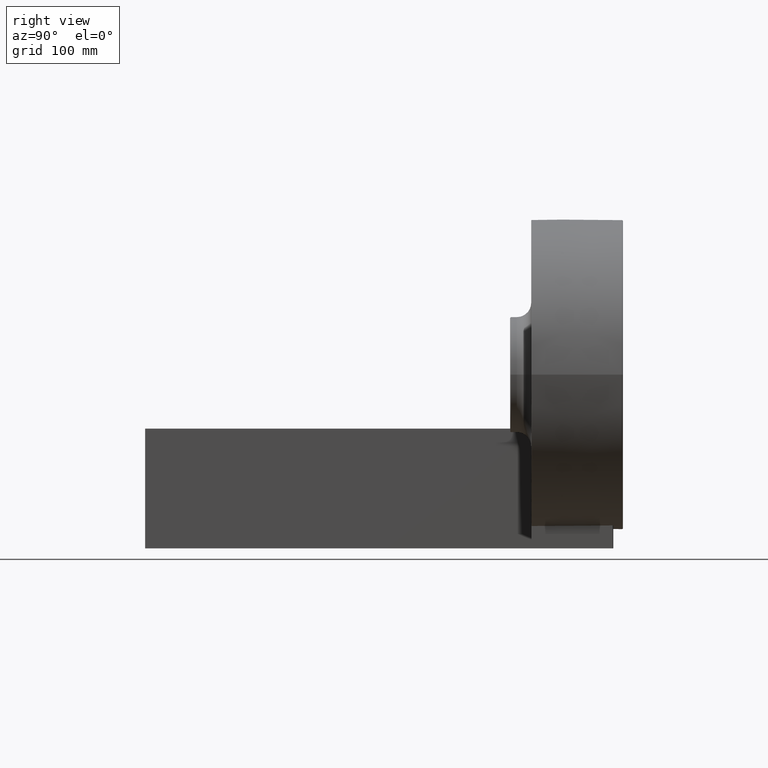
[diagram: clean part render]
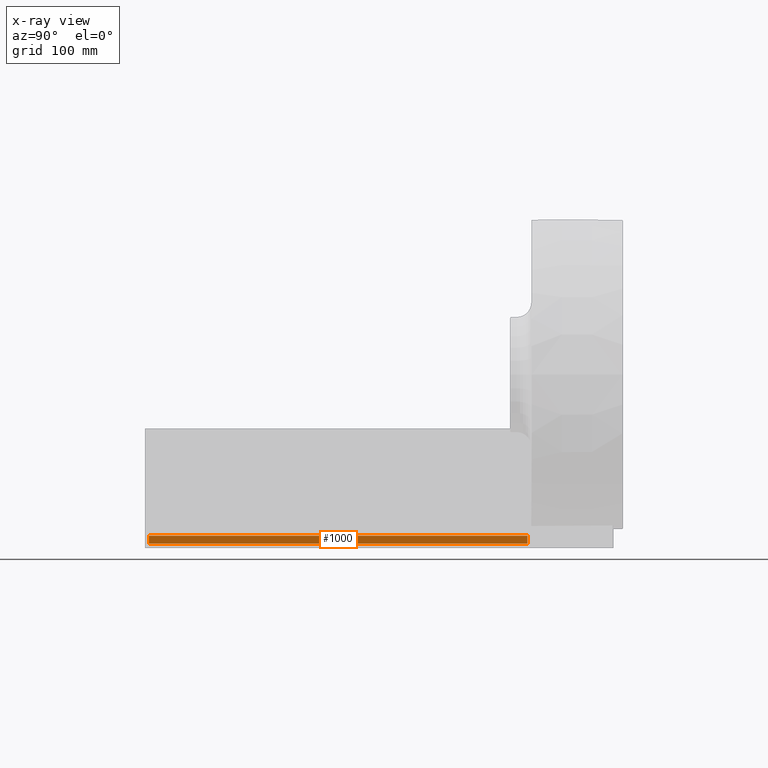
[diagram: x-ray — body ghosted, one internal face saturated and labeled with its STEP entity id]
A machine part, right view, then the same camera in x-ray: the body is ghosted and one INTERNAL B-rep face — a face not visible from any outside direction — is saturated and labeled: STEP entity #1000.
In plain terms, the highlighted planar face has unit normal (-1, 0, 0).
Its self-contained STEP definition (entity closure, byte-faithful):
#115 = DIRECTION ( 'NONE',  ( 2.168404344971007142E-16, -9.093308543426788360E-17, 1.000000000000000000 ) ) ;
#146 = EDGE_CURVE ( 'NONE', #2498, #3415, #3548, .T. ) ;
#453 = AXIS2_PLACEMENT_3D ( 'NONE', #4797, #1464, #734 ) ;
#505 = CARTESIAN_POINT ( 'NONE',  ( 4.000000000000000000, 4.000000000000000000, -118.9999999999999716 ) ) ;
#685 = EDGE_CURVE ( 'NONE', #3665, #4514, #4038, .T. ) ;
#696 = VECTOR ( 'NONE', #3175, 1000.000000000000000 ) ;
#734 = DIRECTION ( 'NONE',  ( 2.168404344971006896E-16, 0.0000000000000000000, 1.000000000000000000 ) ) ;
#1000 = ADVANCED_FACE ( 'NONE', ( #1136 ), #4103, .F. ) ;
#1060 = ORIENTED_EDGE ( 'NONE', *, *, #4278, .T. ) ;
#1106 = EDGE_CURVE ( 'NONE', #3415, #3665, #4590, .T. ) ;
#1120 = CARTESIAN_POINT ( 'NONE',  ( 4.000000000000001776, 4.000000000000000000, -110.9999999999999574 ) ) ;
#1136 = FACE_OUTER_BOUND ( 'NONE', #2796, .T. ) ;
#1464 = DIRECTION ( 'NONE',  ( -1.000000000000000000, 0.0000000000000000000, 2.168404344971006896E-16 ) ) ;
#1500 = LINE ( 'NONE', #2235, #3083 ) ;
#1630 = VECTOR ( 'NONE', #115, 1000.000000000000000 ) ;
#1920 = DIRECTION ( 'NONE',  ( -2.168404344971006896E-16, 0.0000000000000000000, -1.000000000000000000 ) ) ;
#2235 = CARTESIAN_POINT ( 'NONE',  ( 4.000000000000001776, 4.000000000000000000, -110.9999999999999574 ) ) ;
#2498 = VERTEX_POINT ( 'NONE', #3490 ) ;
#2604 = DIRECTION ( 'NONE',  ( -0.0000000000000000000, -1.000000000000000000, -0.0000000000000000000 ) ) ;
#2796 = EDGE_LOOP ( 'NONE', ( #2837, #3112, #1060, #3736 ) ) ;
#2837 = ORIENTED_EDGE ( 'NONE', *, *, #1106, .T. ) ;
#2887 = CARTESIAN_POINT ( 'NONE',  ( 4.000000000000000000, 396.0000000000000568, -118.9999999999999716 ) ) ;
#3083 = VECTOR ( 'NONE', #1920, 1000.000000000000000 ) ;
#3112 = ORIENTED_EDGE ( 'NONE', *, *, #685, .T. ) ;
#3134 = CARTESIAN_POINT ( 'NONE',  ( 4.000000000000001776, 4.000000000000000000, -110.9999999999999574 ) ) ;
#3175 = DIRECTION ( 'NONE',  ( 0.0000000000000000000, 1.000000000000000000, 0.0000000000000000000 ) ) ;
#3205 = VECTOR ( 'NONE', #2604, 1000.000000000000000 ) ;
#3415 = VERTEX_POINT ( 'NONE', #2887 ) ;
#3490 = CARTESIAN_POINT ( 'NONE',  ( 4.000000000000000000, 4.000000000000000000, -118.9999999999999716 ) ) ;
#3548 = LINE ( 'NONE', #505, #696 ) ;
#3665 = VERTEX_POINT ( 'NONE', #3850 ) ;
#3736 = ORIENTED_EDGE ( 'NONE', *, *, #146, .T. ) ;
#3850 = CARTESIAN_POINT ( 'NONE',  ( 4.000000000000001776, 396.0000000000000568, -110.9999999999999574 ) ) ;
#3853 = CARTESIAN_POINT ( 'NONE',  ( 4.000000000000025757, 396.0000000000000568, -1.231094079725470792E-15 ) ) ;
#4038 = LINE ( 'NONE', #1120, #3205 ) ;
#4103 = PLANE ( 'NONE',  #453 ) ;
#4278 = EDGE_CURVE ( 'NONE', #4514, #2498, #1500, .T. ) ;
#4514 = VERTEX_POINT ( 'NONE', #3134 ) ;
#4590 = LINE ( 'NONE', #3853, #1630 ) ;
#4797 = CARTESIAN_POINT ( 'NONE',  ( 4.000000000000025757, 0.0000000000000000000, -1.231094079725480061E-15 ) ) ;